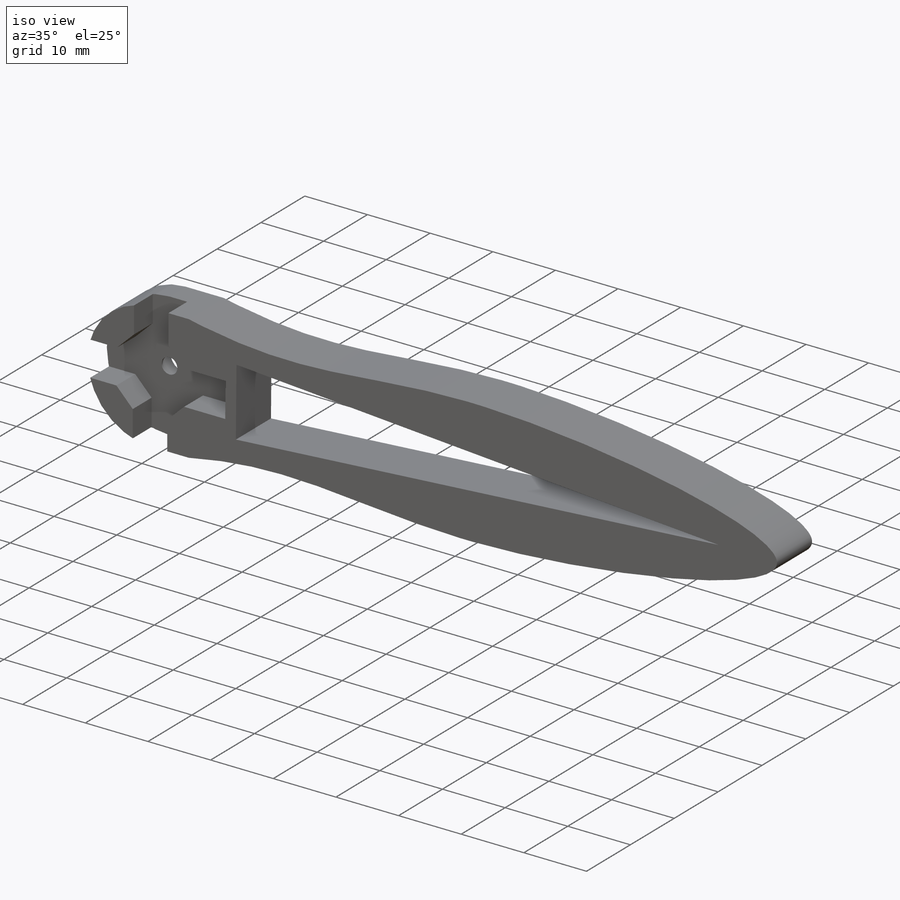
[diagram: iso view]
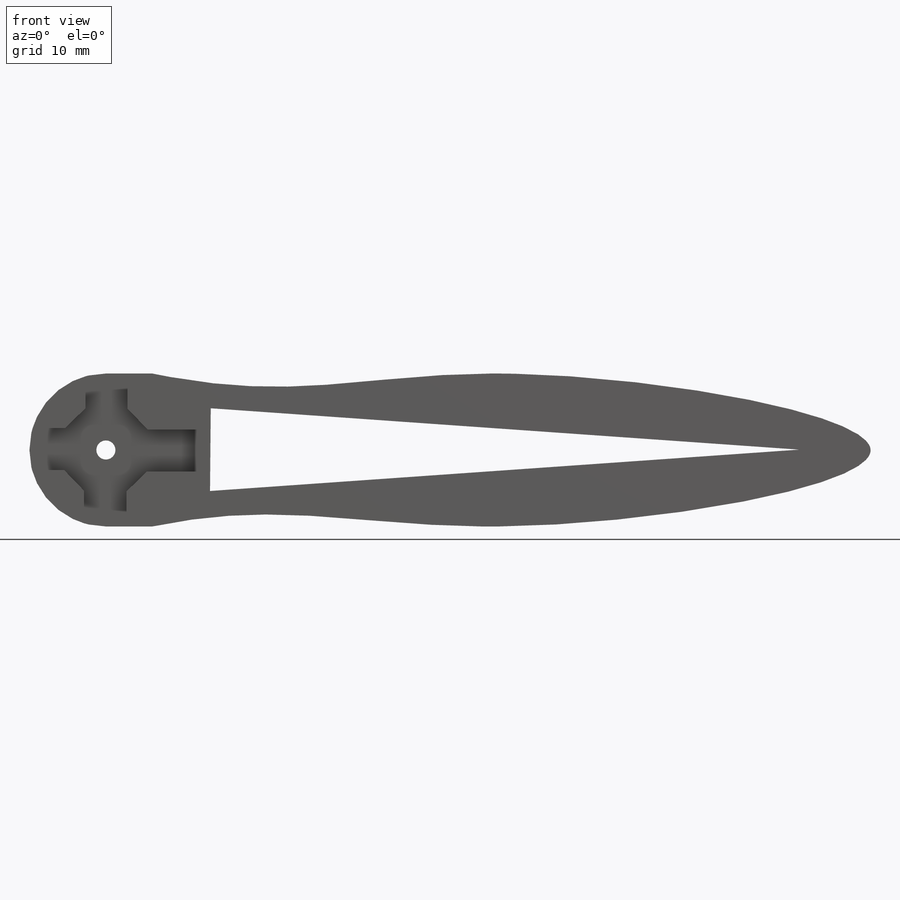
[diagram: front view]
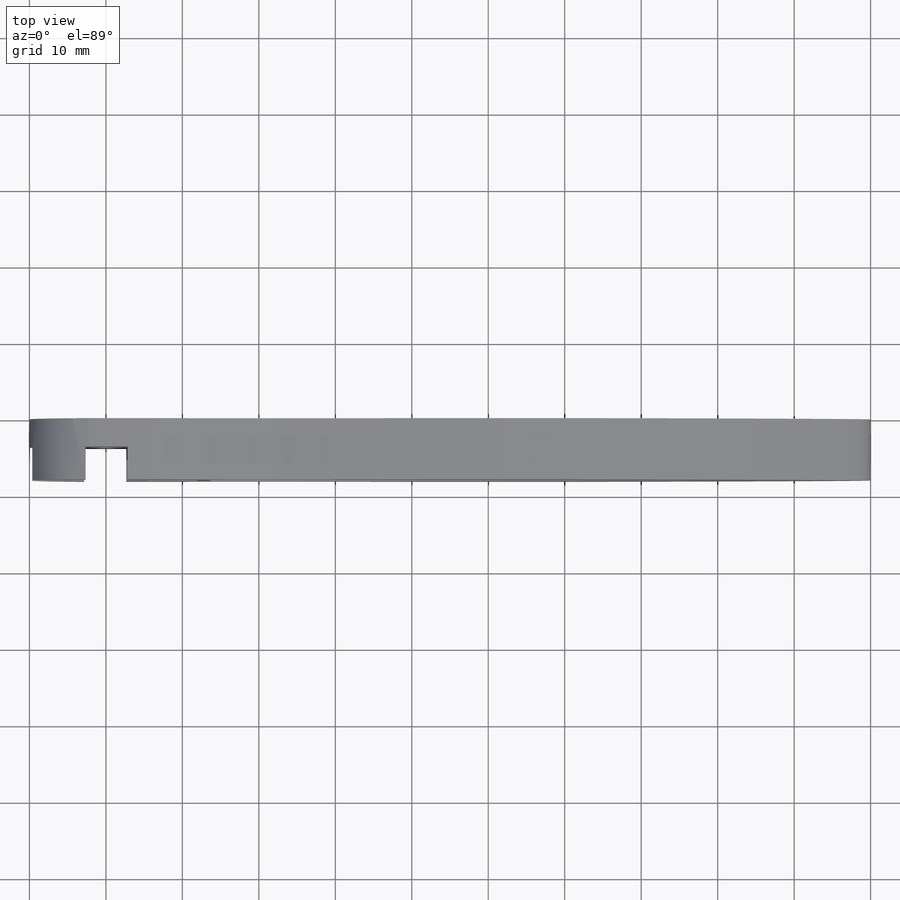
[diagram: top view]
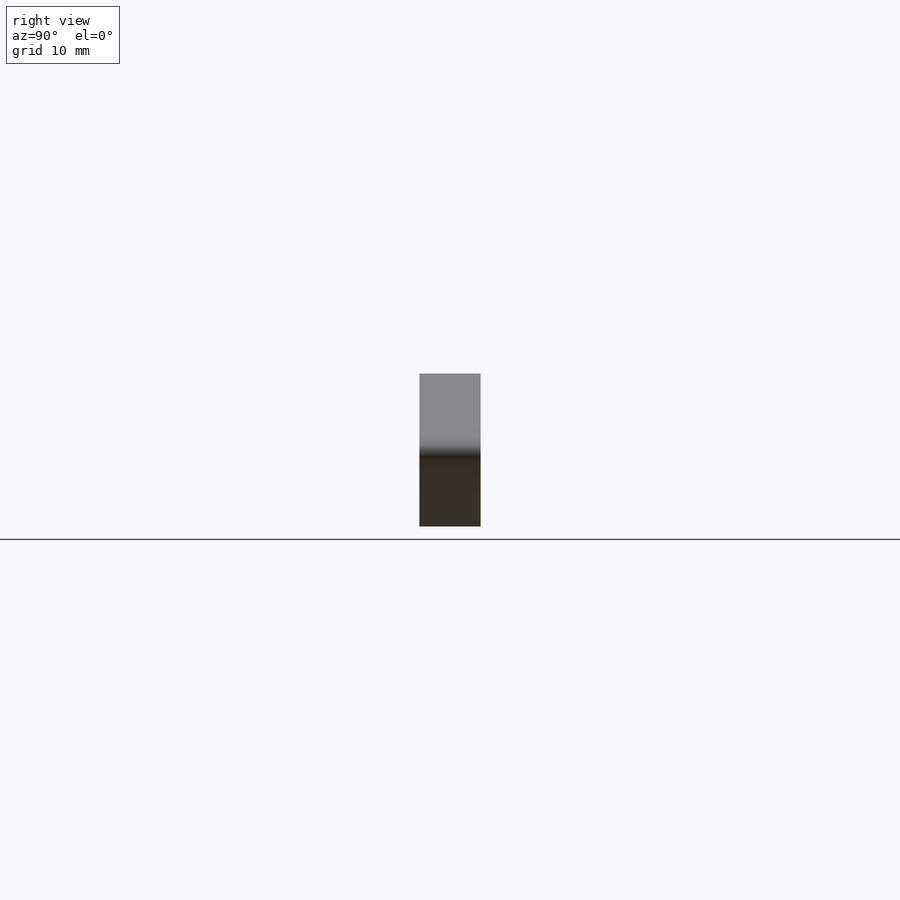
[diagram: right view]
SOLIDWORKS PART (.sldprt)
format: sldprt  version: not decoded by parser v0  size: 261,120 bytes
history: native  units: mm
features: sketch x7, cut_extrude x6, plane x3, material x1, extrude x1 (+8 scaffold rows collapsed)
feature tree (26):
  scaffold x8  (default folders/planes/origin — collapsed)
  material  "Matériau <non spécifié>"
  plane  "Plan de face"
  plane  "Plan de dessus"
  plane  "Plan de droite"
  sketch  "Esquisse1"  dims[D3=10.0mm D1=20.0mm D2=50.0mm]
  extrude  "Boss.-Extru.1"  Depth=8mm
  sketch  "Esquisse13"  dims[D1=8.0mm]
  cut_extrude  "Enlèv. mat.-Extru.9"  Depth=4.3mm
  sketch  "Esquisse14"  dims[c1.D3=~12.135636mm c1.D1=5.5mm c1.D2=5.0mm c2.D3=24.0mm c2.D4=3.75mm c2.D5=~4.028193mm c2.D6=3.9mm c2.D7=~3.883148mm c2.D1=5.5mm c2.D2=~6.552652mm c3.D3=~3.759317mm c3.D4=~11.538682mm]
  cut_extrude  "Enlèv. mat.-Extru.10"  Depth=4.3mm
  sketch  "Esquisse15"  dims[D1=5.0mm]
  cut_extrude  "Enlèv. mat.-Extru.11"  Depth=3.4mm
  sketch  "Esquisse16"  dims[D1=2.5mm]
  cut_extrude  "Enlèv. mat.-Extru.12"  [1 undecoded]
  sketch  "Esquisse17"
  cut_extrude  "Enlèv. mat.-Extru.13"  Depth=10mm
  sketch  "Esquisse18"
  cut_extrude  "Enlèv. mat.-Extru.14"  Depth=10mm
decode coverage: 11 of 14 modeling features carry decoded parameters
note: ~ marks probable driven/reference dimensions
note: 1 parameter value undecoded
note: suppression state not decoded; provenance and decode notes live in map.json
